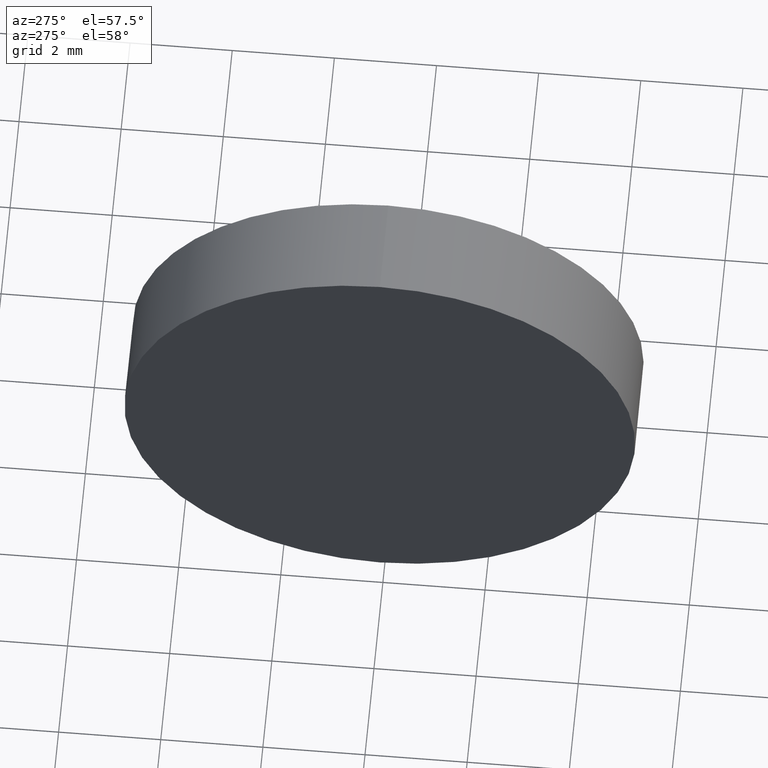
[diagram: clean part render]
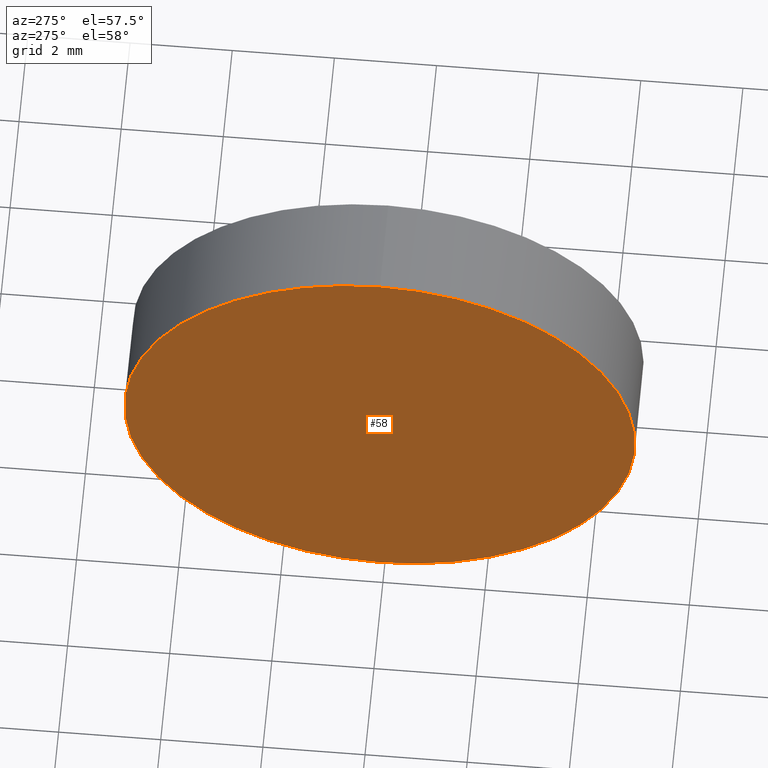
[diagram: same view with one face highlighted and labeled with its STEP entity id]
A machine part, auxiliary view. The second image highlights one B-rep face of the part: STEP entity #58.
In plain terms, the highlighted planar face has unit normal (1, 0, 0).
Its self-contained STEP definition (entity closure, byte-faithful):
#30 = FACE_OUTER_BOUND ( 'NONE', #67, .T. ) ;
#32 = AXIS2_PLACEMENT_3D ( 'NONE', #124, #38, #92 ) ;
#38 = DIRECTION ( 'NONE',  ( -1.000000000000000000, -0.0000000000000000000, -0.0000000000000000000 ) ) ;
#40 = DIRECTION ( 'NONE',  ( -1.000000000000000000, -0.0000000000000000000, -0.0000000000000000000 ) ) ;
#43 = CARTESIAN_POINT ( 'NONE',  ( 44.31958549791029600, 26.08904114919495900, 0.0000000000000000000 ) ) ;
#44 = ORIENTED_EDGE ( 'NONE', *, *, #177, .T. ) ;
#51 = CARTESIAN_POINT ( 'NONE',  ( 44.31958549791029600, 26.08904114919495900, -5.000000000000000900 ) ) ;
#53 = DIRECTION ( 'NONE',  ( 0.0000000000000000000, 0.0000000000000000000, 1.000000000000000000 ) ) ;
#58 = ADVANCED_FACE ( 'NONE', ( #30 ), #142, .F. ) ;
#59 = VERTEX_POINT ( 'NONE', #150 ) ;
#62 = CARTESIAN_POINT ( 'NONE',  ( 44.31958549791029600, 26.08904114919495900, 0.0000000000000000000 ) ) ;
#67 = EDGE_LOOP ( 'NONE', ( #44, #144 ) ) ;
#89 = AXIS2_PLACEMENT_3D ( 'NONE', #62, #40, #53 ) ;
#92 = DIRECTION ( 'NONE',  ( 0.0000000000000000000, 0.0000000000000000000, 1.000000000000000000 ) ) ;
#117 = EDGE_CURVE ( 'NONE', #121, #59, #132, .T. ) ;
#121 = VERTEX_POINT ( 'NONE', #51 ) ;
#122 = DIRECTION ( 'NONE',  ( 1.000000000000000000, 0.0000000000000000000, 0.0000000000000000000 ) ) ;
#124 = CARTESIAN_POINT ( 'NONE',  ( 44.31958549791029600, 26.08904114919495900, 0.0000000000000000000 ) ) ;
#132 = CIRCLE ( 'NONE', #32, 5.000000000000000900 ) ;
#142 = PLANE ( 'NONE',  #169 ) ;
#144 = ORIENTED_EDGE ( 'NONE', *, *, #117, .T. ) ;
#150 = CARTESIAN_POINT ( 'NONE',  ( 44.31958549791029600, 26.08904114919495900, 5.000000000000000900 ) ) ;
#157 = CIRCLE ( 'NONE', #89, 5.000000000000000900 ) ;
#159 = DIRECTION ( 'NONE',  ( 0.0000000000000000000, 0.0000000000000000000, -1.000000000000000000 ) ) ;
#169 = AXIS2_PLACEMENT_3D ( 'NONE', #43, #122, #159 ) ;
#177 = EDGE_CURVE ( 'NONE', #59, #121, #157, .T. ) ;